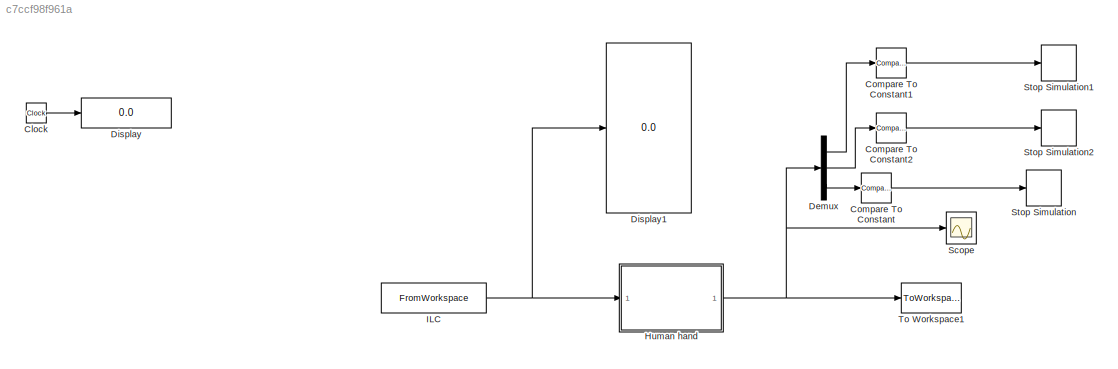
MODEL slx_c7ccf98f961a
KIND model
CONFIG AbsTol = auto
CONFIG EnableMultiTasking = on
CONFIG FixedStep = 0.0001
CONFIG MaxStep = auto
CONFIG MinStep = auto
CONFIG RelTol = 1e-4
CONFIG SampleTimeConstraint = Unconstrained
CONFIG SolverName = ode113
CONFIG StartTime = 0.0
CONFIG StopTime = T
BLOCK [Clock] Clock
BLOCK [Reference] Compare To Constant  REF=simulink/Logic and Bit
Operations/Compare
To Constant
  Commented = on
  Ports = [1, 1]
  SourceBlock = simulink/Logic and Bit\nOperations/Compare\nTo Constant
  SourceProductBaseCode = SL
  SourceType = Compare To Constant
BLOCK [Reference] Compare To Constant1  REF=simulink/Logic and Bit
Operations/Compare
To Constant
  Ports = [1, 1]
  SourceBlock = simulink/Logic and Bit\nOperations/Compare\nTo Constant
  SourceProductBaseCode = SL
  SourceType = Compare To Constant
BLOCK [Reference] Compare To Constant2  REF=simulink/Logic and Bit
Operations/Compare
To Constant
  Commented = on
  Ports = [1, 1]
  SourceBlock = simulink/Logic and Bit\nOperations/Compare\nTo Constant
  SourceProductBaseCode = SL
  SourceType = Compare To Constant
BLOCK [Demux] Demux
  Outputs = 3
  Ports = [1, 3]
BLOCK [Display] Display
  Decimation = 1
  Ports = [1]
BLOCK [Display] Display1
  Decimation = 1
  Ports = [1]
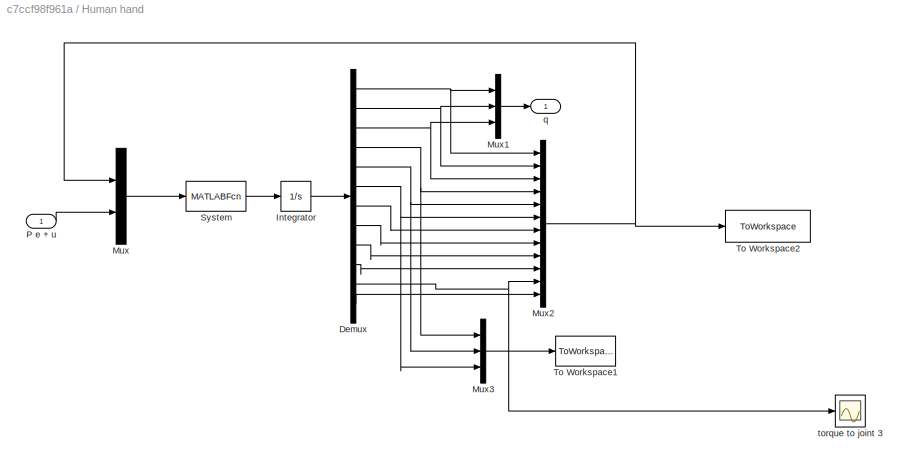
BLOCK [SubSystem] Human hand
  Ports = [1, 1]
  RequestExecContextInheritance = off
BLOCK [Inport] Human hand/ P e + u
BLOCK [Demux] Human hand/Demux
  Outputs = 12
  Ports = [1, 12]
BLOCK [Integrator] Human hand/Integrator
  InitialCondition = [q1init q2init q3init q1dot0 q2dot0 q3dot0  0  0  0  0  0  0]
  Ports = [1, 1]
BLOCK [Mux] Human hand/Mux
  DisplayOption = bar
  Inputs = 2
  Ports = [2, 1]
BLOCK [Mux] Human hand/Mux1
  DisplayOption = bar
  Inputs = 3
  Ports = [3, 1]
BLOCK [Mux] Human hand/Mux2
  DisplayOption = bar
  Inputs = 12
  Ports = [12, 1]
BLOCK [Mux] Human hand/Mux3
  DisplayOption = bar
  Inputs = 3
  Ports = [3, 1]
BLOCK [MATLABFcn] Human hand/System
  MATLABFcn = finger_for_simulink2_mus_20042021
  OutputDimensions = 12
  Ports = [1, 1]
BLOCK [ToWorkspace] Human hand/To Workspace1
  MaxDataPoints = inf
  Ports = [1]
  SampleTime = Ts
  SaveFormat = Structure With Time
  VariableName = qdot
BLOCK [ToWorkspace] Human hand/To Workspace2
  MaxDataPoints = inf
  Ports = [1]
  SampleTime = Ts
  SaveFormat = Structure With Time
  VariableName = stored_states
BLOCK [Outport] Human hand/q
BLOCK [Scope] Human hand/torque to joint 3
  Floating = off
  NumInputPorts = 1
  Ports = [1]
  ScopeSpecificationString = Simulink.scopes.TimeScopeBlockCfg('CurrentConfiguration', extmgr.ConfigurationSet(extmgr.Configuration('Core','General UI',true),extmgr.Configuration('Core','Source UI',true),extmgr.Configuration('Sources','WiredSimulink',true,'DataLoggingVariableName','ScopeData2','DataLoggingSaveFormat','StructureWithTime','DataLoggingDecimation','1','DataLoggingDecimateData',true),extmgr.Configuration('Visuals'...<+1649ch>
BLOCK [FromWorkspace] ILC
  VariableName = [t_ref.' u]
BLOCK [Scope] Scope
  Floating = off
  NumInputPorts = 1
  Ports = [1]
  ScopeSpecificationString = Simulink.scopes.TimeScopeBlockCfg('CurrentConfiguration', extmgr.ConfigurationSet(extmgr.Configuration('Core','General UI',true),extmgr.Configuration('Core','Source UI',true),extmgr.Configuration('Sources','WiredSimulink',true,'DataLoggingSaveFormat','StructureWithTime','DataLoggingDecimation','1','DataLoggingDecimateData',true),extmgr.Configuration('Visuals','Time Domain',true,'SerializedDisplays...<+1655ch>
BLOCK [Stop] Stop Simulation
  Commented = on
BLOCK [Stop] Stop Simulation1
BLOCK [Stop] Stop Simulation2
  Commented = on
BLOCK [ToWorkspace] To Workspace1
  MaxDataPoints = inf
  Ports = [1]
  SampleTime = Ts
  SaveFormat = Structure With Time
  VariableName = q
LINE Clock:1 -> Display:1
LINE Compare To Constant1:1 -> Stop Simulation1:1
LINE Compare To Constant2:1 -> Stop Simulation2:1
LINE Compare To Constant:1 -> Stop Simulation:1
LINE Demux:1 -> Compare To Constant1:1
LINE Demux:2 -> Compare To Constant2:1
LINE Demux:3 -> Compare To Constant:1
LINE Human hand/ P e + u:1 -> Human hand/Mux:2
NET Human hand/Demux:1 -> Human hand/Mux1:1, Human hand/Mux2:1
LINE Human hand/Demux:10 -> Human hand/Mux2:10
NET Human hand/Demux:11 -> Human hand/Mux2:11, Human hand/torque to joint 3:1
LINE Human hand/Demux:12 -> Human hand/Mux2:12
NET Human hand/Demux:2 -> Human hand/Mux1:2, Human hand/Mux2:2
NET Human hand/Demux:3 -> Human hand/Mux1:3, Human hand/Mux2:3
NET Human hand/Demux:4 -> Human hand/Mux2:4, Human hand/Mux3:1
NET Human hand/Demux:5 -> Human hand/Mux2:5, Human hand/Mux3:2
NET Human hand/Demux:6 -> Human hand/Mux2:6, Human hand/Mux3:3
LINE Human hand/Demux:7 -> Human hand/Mux2:7
LINE Human hand/Demux:8 -> Human hand/Mux2:8
LINE Human hand/Demux:9 -> Human hand/Mux2:9
LINE Human hand/Integrator:1 -> Human hand/Demux:1
LINE Human hand/Mux1:1 -> Human hand/q:1
NET Human hand/Mux2:1 -> Human hand/Mux:1, Human hand/To Workspace2:1
LINE Human hand/Mux3:1 -> Human hand/To Workspace1:1
LINE Human hand/Mux:1 -> Human hand/System:1
LINE Human hand/System:1 -> Human hand/Integrator:1
NET Human hand:1 -> Demux:1, Scope:1, To Workspace1:1
NET ILC:1 -> Display1:1, Human hand:1
note: NET lines group one-source signal fan-out (src -> all destinations, sorted); 1:1 wires keep LINE
